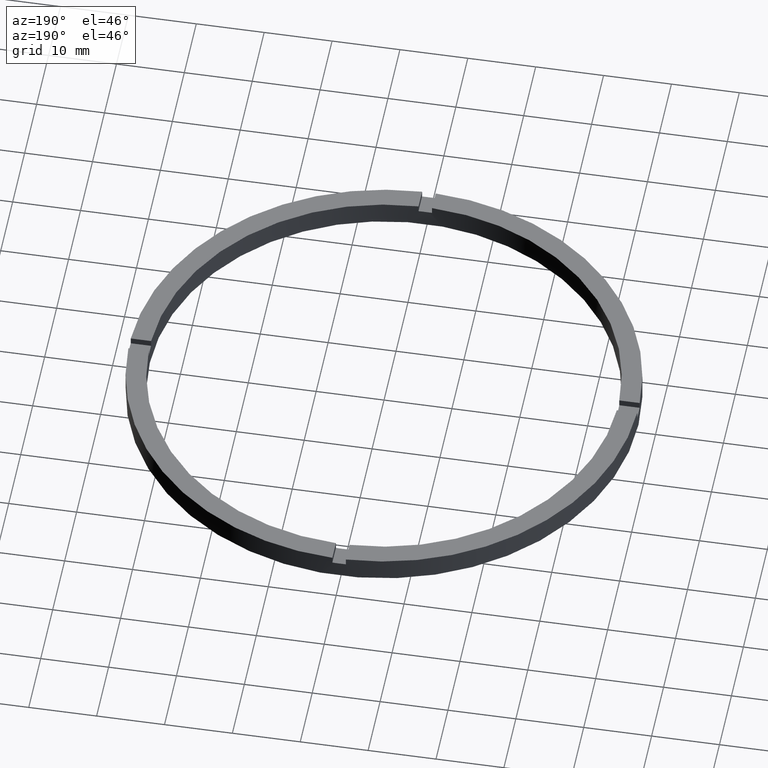
[diagram: clean part render]
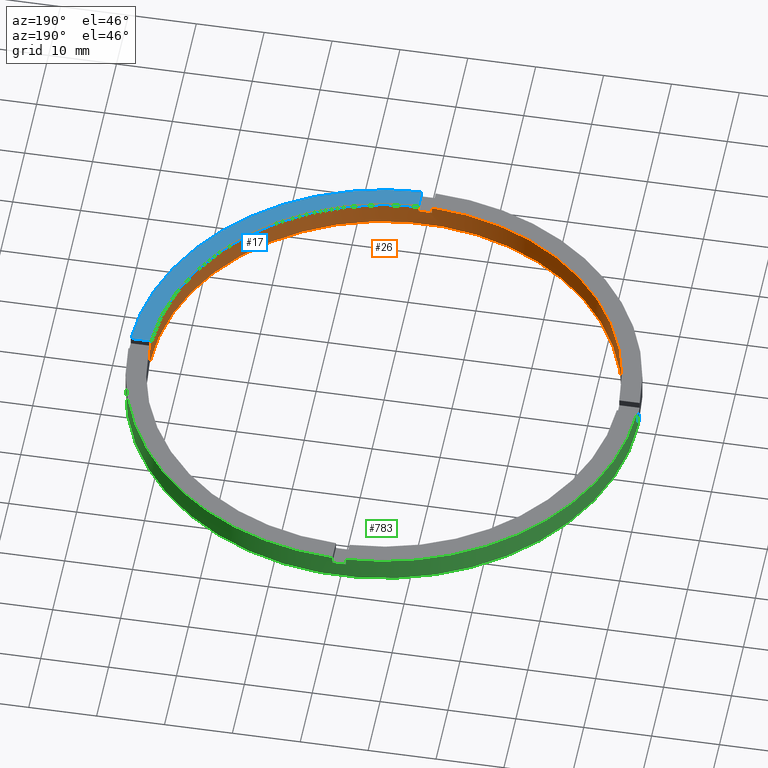
[diagram: same view with three faces highlighted in distinct colors, each labeled with its STEP entity id]
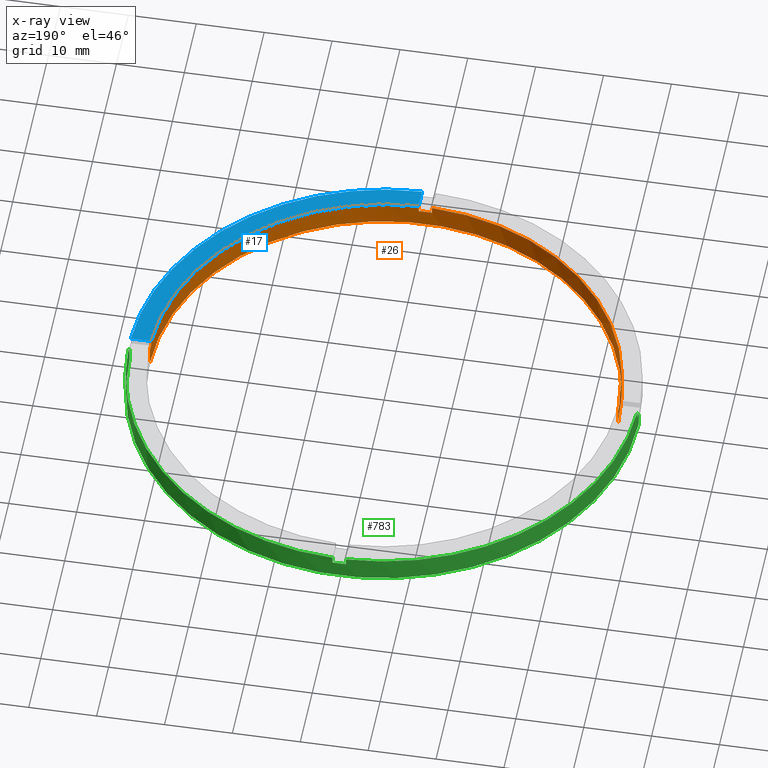
[diagram: x-ray of the same camera — body ghosted, the three highlighted faces saturated]
A machine part, auxiliary view with three faces highlighted in distinct colors.
The next image is the same camera in x-ray (body ghosted, the three faces saturated) — at least one of them is partly hidden behind the body in this view.
Their STEP definitions:

[orange] entity #26 — the highlighted cylindrical surface (partial cylindrical patch) has radius 34.5 mm, axis along (-0, -0, -1).
#1 = EDGE_CURVE ( 'NONE', #712, #366, #627, .T. ) ;
#12 = CARTESIAN_POINT ( 'NONE',  ( 0.9999999999998397948, -34.48550420104076153, 3.500000000000000000 ) ) ;
#26 = ADVANCED_FACE ( 'NONE', ( #644 ), #421, .F. ) ;
#28 = LINE ( 'NONE', #554, #290 ) ;
#41 = AXIS2_PLACEMENT_3D ( 'NONE', #575, #181, #568 ) ;
#42 = DIRECTION ( 'NONE',  ( 1.000000000000000000, 0.000000000000000000, 0.000000000000000000 ) ) ;
#43 = CARTESIAN_POINT ( 'NONE',  ( -34.48550420104075442, -1.000000000000026867, 3.500000000000000000 ) ) ;
#46 = CARTESIAN_POINT ( 'NONE',  ( -1.000000000000160316, -34.48550420104075442, 3.500000000000000000 ) ) ;
#50 = CIRCLE ( 'NONE', #744, 34.49999999999999289 ) ;
#60 = CIRCLE ( 'NONE', #268, 34.49999999999999289 ) ;
#61 = VECTOR ( 'NONE', #683, 1000.000000000000000 ) ;
#68 = LINE ( 'NONE', #154, #61 ) ;
#74 = CARTESIAN_POINT ( 'NONE',  ( 0.9999999999998397948, -34.48550420104076153, 3.500000000000000000 ) ) ;
#83 = CARTESIAN_POINT ( 'NONE',  ( 0.000000000000000000, 0.000000000000000000, 0.000000000000000000 ) ) ;
#97 = ORIENTED_EDGE ( 'NONE', *, *, #292, .T. ) ;
#98 = ORIENTED_EDGE ( 'NONE', *, *, #1, .F. ) ;
#100 = ORIENTED_EDGE ( 'NONE', *, *, #477, .F. ) ;
#123 = EDGE_LOOP ( 'NONE', ( #718, #203, #594, #673, #725, #98, #97, #649, #745, #378, #198, #100 ) ) ;
#127 = CARTESIAN_POINT ( 'NONE',  ( 34.48550420104075442, -1.000000000000157652, 3.500000000000000000 ) ) ;
#134 = DIRECTION ( 'NONE',  ( 1.000000000000000000, 0.000000000000000000, 0.000000000000000000 ) ) ;
#141 = DIRECTION ( 'NONE',  ( -0.000000000000000000, 0.000000000000000000, 1.000000000000000000 ) ) ;
#154 = CARTESIAN_POINT ( 'NONE',  ( 34.49999999999999289, 4.225031457058367344E-15, 3.500000000000000000 ) ) ;
#177 = CIRCLE ( 'NONE', #364, 34.49999999999999289 ) ;
#181 = DIRECTION ( 'NONE',  ( 0.000000000000000000, 0.000000000000000000, 1.000000000000000000 ) ) ;
#182 = AXIS2_PLACEMENT_3D ( 'NONE', #207, #256, #216 ) ;
#186 = DIRECTION ( 'NONE',  ( 0.000000000000000000, 0.000000000000000000, 1.000000000000000000 ) ) ;
#190 = EDGE_CURVE ( 'NONE', #775, #486, #670, .T. ) ;
#197 = DIRECTION ( 'NONE',  ( -0.000000000000000000, -0.000000000000000000, -1.000000000000000000 ) ) ;
#198 = ORIENTED_EDGE ( 'NONE', *, *, #447, .T. ) ;
#199 = CARTESIAN_POINT ( 'NONE',  ( 0.000000000000000000, 0.000000000000000000, 3.500000000000000000 ) ) ;
#203 = ORIENTED_EDGE ( 'NONE', *, *, #666, .T. ) ;
#207 = CARTESIAN_POINT ( 'NONE',  ( 0.000000000000000000, 0.000000000000000000, 3.500000000000000000 ) ) ;
#216 = DIRECTION ( 'NONE',  ( -1.000000000000000000, 0.000000000000000000, 0.000000000000000000 ) ) ;
#231 = VERTEX_POINT ( 'NONE', #586 ) ;
#254 = DIRECTION ( 'NONE',  ( 0.000000000000000000, 0.000000000000000000, 1.000000000000000000 ) ) ;
#256 = DIRECTION ( 'NONE',  ( -0.000000000000000000, -0.000000000000000000, -1.000000000000000000 ) ) ;
#263 = EDGE_CURVE ( 'NONE', #754, #687, #177, .T. ) ;
#268 = AXIS2_PLACEMENT_3D ( 'NONE', #83, #515, #42 ) ;
#282 = LINE ( 'NONE', #127, #295 ) ;
#288 = CIRCLE ( 'NONE', #734, 34.49999999999999289 ) ;
#290 = VECTOR ( 'NONE', #749, 1000.000000000000000 ) ;
#292 = EDGE_CURVE ( 'NONE', #712, #486, #438, .T. ) ;
#295 = VECTOR ( 'NONE', #740, 1000.000000000000000 ) ;
#329 = CARTESIAN_POINT ( 'NONE',  ( -34.49999999999999289, 0.000000000000000000, 0.000000000000000000 ) ) ;
#334 = CARTESIAN_POINT ( 'NONE',  ( -34.48550420104075442, -1.000000000000026867, 3.500000000000000000 ) ) ;
#361 = VERTEX_POINT ( 'NONE', #709 ) ;
#364 = AXIS2_PLACEMENT_3D ( 'NONE', #493, #186, #582 ) ;
#366 = VERTEX_POINT ( 'NONE', #516 ) ;
#372 = DIRECTION ( 'NONE',  ( 1.000000000000000000, 0.000000000000000000, 0.000000000000000000 ) ) ;
#378 = ORIENTED_EDGE ( 'NONE', *, *, #521, .F. ) ;
#392 = VERTEX_POINT ( 'NONE', #74 ) ;
#393 = VECTOR ( 'NONE', #197, 1000.000000000000000 ) ;
#405 = EDGE_CURVE ( 'NONE', #775, #741, #535, .T. ) ;
#412 = CARTESIAN_POINT ( 'NONE',  ( 0.9999999999998397948, -34.48550420104076153, 2.500000000000000000 ) ) ;
#421 = CYLINDRICAL_SURFACE ( 'NONE', #182, 34.49999999999999289 ) ;
#438 = CIRCLE ( 'NONE', #41, 34.49999999999999289 ) ;
#439 = VECTOR ( 'NONE', #777, 1000.000000000000000 ) ;
#447 = EDGE_CURVE ( 'NONE', #392, #632, #288, .T. ) ;
#477 = EDGE_CURVE ( 'NONE', #754, #632, #282, .T. ) ;
#486 = VERTEX_POINT ( 'NONE', #753 ) ;
#493 = CARTESIAN_POINT ( 'NONE',  ( 0.000000000000000000, 0.000000000000000000, 2.500000000000000000 ) ) ;
#501 = CARTESIAN_POINT ( 'NONE',  ( 34.49999999999999289, 4.225031457058367344E-15, 2.500000000000000000 ) ) ;
#507 = EDGE_CURVE ( 'NONE', #361, #748, #28, .T. ) ;
#512 = CARTESIAN_POINT ( 'NONE',  ( 34.48550420104075442, -1.000000000000157652, 2.500000000000000000 ) ) ;
#515 = DIRECTION ( 'NONE',  ( 0.000000000000000000, 0.000000000000000000, 1.000000000000000000 ) ) ;
#516 = CARTESIAN_POINT ( 'NONE',  ( -34.48550420104075442, -1.000000000000026867, 2.500000000000000000 ) ) ;
#521 = EDGE_CURVE ( 'NONE', #392, #741, #552, .T. ) ;
#522 = DIRECTION ( 'NONE',  ( 0.000000000000000000, 0.000000000000000000, 1.000000000000000000 ) ) ;
#534 = VECTOR ( 'NONE', #766, 1000.000000000000000 ) ;
#535 = CIRCLE ( 'NONE', #676, 34.49999999999999289 ) ;
#542 = CARTESIAN_POINT ( 'NONE',  ( 34.48550420104075442, -1.000000000000157652, 3.500000000000000000 ) ) ;
#552 = LINE ( 'NONE', #12, #534 ) ;
#554 = CARTESIAN_POINT ( 'NONE',  ( -34.49999999999999289, 0.000000000000000000, 3.500000000000000000 ) ) ;
#568 = DIRECTION ( 'NONE',  ( 1.000000000000000000, 0.000000000000000000, 0.000000000000000000 ) ) ;
#575 = CARTESIAN_POINT ( 'NONE',  ( 0.000000000000000000, 0.000000000000000000, 3.500000000000000000 ) ) ;
#582 = DIRECTION ( 'NONE',  ( 1.000000000000000000, 0.000000000000000000, 0.000000000000000000 ) ) ;
#586 = CARTESIAN_POINT ( 'NONE',  ( 34.49999999999999289, 4.225031457058367344E-15, 0.000000000000000000 ) ) ;
#594 = ORIENTED_EDGE ( 'NONE', *, *, #771, .F. ) ;
#627 = LINE ( 'NONE', #43, #393 ) ;
#632 = VERTEX_POINT ( 'NONE', #542 ) ;
#634 = CARTESIAN_POINT ( 'NONE',  ( -1.000000000000160316, -34.48550420104075442, 2.500000000000000000 ) ) ;
#644 = FACE_OUTER_BOUND ( 'NONE', #123, .T. ) ;
#649 = ORIENTED_EDGE ( 'NONE', *, *, #190, .F. ) ;
#666 = EDGE_CURVE ( 'NONE', #687, #231, #68, .T. ) ;
#670 = LINE ( 'NONE', #46, #439 ) ;
#673 = ORIENTED_EDGE ( 'NONE', *, *, #507, .F. ) ;
#676 = AXIS2_PLACEMENT_3D ( 'NONE', #705, #141, #134 ) ;
#683 = DIRECTION ( 'NONE',  ( -0.000000000000000000, -0.000000000000000000, -1.000000000000000000 ) ) ;
#687 = VERTEX_POINT ( 'NONE', #501 ) ;
#705 = CARTESIAN_POINT ( 'NONE',  ( 0.000000000000000000, 0.000000000000000000, 2.500000000000000000 ) ) ;
#708 = DIRECTION ( 'NONE',  ( 1.000000000000000000, 0.000000000000000000, 0.000000000000000000 ) ) ;
#709 = CARTESIAN_POINT ( 'NONE',  ( -34.49999999999999289, 0.000000000000000000, 2.500000000000000000 ) ) ;
#710 = CARTESIAN_POINT ( 'NONE',  ( 0.000000000000000000, 0.000000000000000000, 2.500000000000000000 ) ) ;
#712 = VERTEX_POINT ( 'NONE', #334 ) ;
#718 = ORIENTED_EDGE ( 'NONE', *, *, #263, .T. ) ;
#725 = ORIENTED_EDGE ( 'NONE', *, *, #778, .T. ) ;
#734 = AXIS2_PLACEMENT_3D ( 'NONE', #199, #254, #372 ) ;
#740 = DIRECTION ( 'NONE',  ( 0.000000000000000000, 0.000000000000000000, 1.000000000000000000 ) ) ;
#741 = VERTEX_POINT ( 'NONE', #412 ) ;
#744 = AXIS2_PLACEMENT_3D ( 'NONE', #710, #522, #708 ) ;
#745 = ORIENTED_EDGE ( 'NONE', *, *, #405, .T. ) ;
#748 = VERTEX_POINT ( 'NONE', #329 ) ;
#749 = DIRECTION ( 'NONE',  ( -0.000000000000000000, -0.000000000000000000, -1.000000000000000000 ) ) ;
#753 = CARTESIAN_POINT ( 'NONE',  ( -1.000000000000160316, -34.48550420104075442, 3.500000000000000000 ) ) ;
#754 = VERTEX_POINT ( 'NONE', #512 ) ;
#766 = DIRECTION ( 'NONE',  ( -0.000000000000000000, -0.000000000000000000, -1.000000000000000000 ) ) ;
#771 = EDGE_CURVE ( 'NONE', #748, #231, #60, .T. ) ;
#775 = VERTEX_POINT ( 'NONE', #634 ) ;
#777 = DIRECTION ( 'NONE',  ( 0.000000000000000000, 0.000000000000000000, 1.000000000000000000 ) ) ;
#778 = EDGE_CURVE ( 'NONE', #361, #366, #50, .T. ) ;

[blue] entity #17 — the highlighted planar face has unit normal (0, 0, 1).
#17 = ADVANCED_FACE ( 'NONE', ( #382 ), #609, .T. ) ;
#30 = AXIS2_PLACEMENT_3D ( 'NONE', #58, #139, #757 ) ;
#40 = EDGE_CURVE ( 'NONE', #755, #392, #679, .T. ) ;
#44 = DIRECTION ( 'NONE',  ( 0.000000000000000000, 0.000000000000000000, 1.000000000000000000 ) ) ;
#58 = CARTESIAN_POINT ( 'NONE',  ( 0.000000000000000000, 0.000000000000000000, 3.500000000000000000 ) ) ;
#66 = LINE ( 'NONE', #596, #335 ) ;
#74 = CARTESIAN_POINT ( 'NONE',  ( 0.9999999999998397948, -34.48550420104076153, 3.500000000000000000 ) ) ;
#94 = CARTESIAN_POINT ( 'NONE',  ( 0.000000000000000000, 0.000000000000000000, 3.500000000000000000 ) ) ;
#130 = DIRECTION ( 'NONE',  ( 1.000000000000000000, 6.505213034913025371E-17, 0.000000000000000000 ) ) ;
#132 = ORIENTED_EDGE ( 'NONE', *, *, #640, .F. ) ;
#139 = DIRECTION ( 'NONE',  ( 0.000000000000000000, 0.000000000000000000, 1.000000000000000000 ) ) ;
#180 = CARTESIAN_POINT ( 'NONE',  ( 0.9999999999998400169, -37.48666429545313150, 3.500000000000000000 ) ) ;
#192 = AXIS2_PLACEMENT_3D ( 'NONE', #94, #44, #492 ) ;
#199 = CARTESIAN_POINT ( 'NONE',  ( 0.000000000000000000, 0.000000000000000000, 3.500000000000000000 ) ) ;
#254 = DIRECTION ( 'NONE',  ( 0.000000000000000000, 0.000000000000000000, 1.000000000000000000 ) ) ;
#281 = CIRCLE ( 'NONE', #192, 37.50000000000000711 ) ;
#288 = CIRCLE ( 'NONE', #734, 34.49999999999999289 ) ;
#301 = EDGE_CURVE ( 'NONE', #755, #456, #281, .T. ) ;
#335 = VECTOR ( 'NONE', #130, 1000.000000000000000 ) ;
#372 = DIRECTION ( 'NONE',  ( 1.000000000000000000, 0.000000000000000000, 0.000000000000000000 ) ) ;
#382 = FACE_OUTER_BOUND ( 'NONE', #489, .T. ) ;
#392 = VERTEX_POINT ( 'NONE', #74 ) ;
#447 = EDGE_CURVE ( 'NONE', #392, #632, #288, .T. ) ;
#456 = VERTEX_POINT ( 'NONE', #767 ) ;
#457 = ORIENTED_EDGE ( 'NONE', *, *, #447, .F. ) ;
#489 = EDGE_LOOP ( 'NONE', ( #132, #457, #636, #717 ) ) ;
#492 = DIRECTION ( 'NONE',  ( 1.000000000000000000, 0.000000000000000000, 0.000000000000000000 ) ) ;
#542 = CARTESIAN_POINT ( 'NONE',  ( 34.48550420104075442, -1.000000000000157652, 3.500000000000000000 ) ) ;
#545 = CARTESIAN_POINT ( 'NONE',  ( 0.9999999999998389066, -27.50000000000018474, 3.500000000000000000 ) ) ;
#596 = CARTESIAN_POINT ( 'NONE',  ( 27.49999999999999645, -1.000000000000158096, 3.500000000000000000 ) ) ;
#609 = PLANE ( 'NONE',  #30 ) ;
#632 = VERTEX_POINT ( 'NONE', #542 ) ;
#636 = ORIENTED_EDGE ( 'NONE', *, *, #40, .F. ) ;
#640 = EDGE_CURVE ( 'NONE', #632, #456, #66, .T. ) ;
#679 = LINE ( 'NONE', #545, #682 ) ;
#682 = VECTOR ( 'NONE', #696, 1000.000000000000000 ) ;
#696 = DIRECTION ( 'NONE',  ( -1.301042606982605074E-16, 1.000000000000000000, -0.000000000000000000 ) ) ;
#717 = ORIENTED_EDGE ( 'NONE', *, *, #301, .T. ) ;
#734 = AXIS2_PLACEMENT_3D ( 'NONE', #199, #254, #372 ) ;
#755 = VERTEX_POINT ( 'NONE', #180 ) ;
#757 = DIRECTION ( 'NONE',  ( 1.000000000000000000, 0.000000000000000000, -0.000000000000000000 ) ) ;
#767 = CARTESIAN_POINT ( 'NONE',  ( 37.48666429545312440, -1.000000000000157430, 3.500000000000000000 ) ) ;

[green] entity #783 — the highlighted cylindrical surface (partial cylindrical patch) has radius 37.5 mm, axis along (-0, -0, -1).
#6 = EDGE_CURVE ( 'NONE', #391, #677, #380, .T. ) ;
#8 = DIRECTION ( 'NONE',  ( 1.000000000000000000, 0.000000000000000000, 0.000000000000000000 ) ) ;
#9 = CARTESIAN_POINT ( 'NONE',  ( 0.9999999999999746869, 37.48666429545313150, 2.500000000000000000 ) ) ;
#15 = VECTOR ( 'NONE', #176, 1000.000000000000000 ) ;
#19 = LINE ( 'NONE', #103, #15 ) ;
#29 = CARTESIAN_POINT ( 'NONE',  ( 37.48666429545313150, 0.9999999999998425704, 3.500000000000000000 ) ) ;
#31 = VECTOR ( 'NONE', #62, 1000.000000000000000 ) ;
#48 = CARTESIAN_POINT ( 'NONE',  ( -37.50000000000000711, 0.000000000000000000, 0.000000000000000000 ) ) ;
#51 = CARTESIAN_POINT ( 'NONE',  ( 0.000000000000000000, 0.000000000000000000, 2.500000000000000000 ) ) ;
#55 = CIRCLE ( 'NONE', #128, 37.50000000000000711 ) ;
#62 = DIRECTION ( 'NONE',  ( -0.000000000000000000, -0.000000000000000000, -1.000000000000000000 ) ) ;
#77 = CARTESIAN_POINT ( 'NONE',  ( 0.000000000000000000, 0.000000000000000000, 2.500000000000000000 ) ) ;
#81 = EDGE_CURVE ( 'NONE', #475, #684, #156, .T. ) ;
#99 = ORIENTED_EDGE ( 'NONE', *, *, #765, .F. ) ;
#103 = CARTESIAN_POINT ( 'NONE',  ( 0.9999999999999746869, 37.48666429545313150, 3.500000000000000000 ) ) ;
#106 = VERTEX_POINT ( 'NONE', #452 ) ;
#115 = ORIENTED_EDGE ( 'NONE', *, *, #563, .T. ) ;
#119 = EDGE_CURVE ( 'NONE', #475, #652, #158, .T. ) ;
#128 = AXIS2_PLACEMENT_3D ( 'NONE', #422, #175, #408 ) ;
#136 = ORIENTED_EDGE ( 'NONE', *, *, #303, .T. ) ;
#149 = ORIENTED_EDGE ( 'NONE', *, *, #6, .T. ) ;
#156 = CIRCLE ( 'NONE', #782, 37.50000000000000711 ) ;
#158 = LINE ( 'NONE', #704, #429 ) ;
#169 = CARTESIAN_POINT ( 'NONE',  ( 0.000000000000000000, 0.000000000000000000, 3.500000000000000000 ) ) ;
#173 = CARTESIAN_POINT ( 'NONE',  ( -37.50000000000000711, 0.000000000000000000, 3.500000000000000000 ) ) ;
#175 = DIRECTION ( 'NONE',  ( 0.000000000000000000, -0.000000000000000000, 1.000000000000000000 ) ) ;
#176 = DIRECTION ( 'NONE',  ( 0.000000000000000000, 0.000000000000000000, 1.000000000000000000 ) ) ;
#210 = CARTESIAN_POINT ( 'NONE',  ( -37.48666429545313150, 0.9999999999999724665, 2.500000000000000000 ) ) ;
#234 = VERTEX_POINT ( 'NONE', #9 ) ;
#240 = DIRECTION ( 'NONE',  ( 0.000000000000000000, 0.000000000000000000, 1.000000000000000000 ) ) ;
#279 = DIRECTION ( 'NONE',  ( -0.000000000000000000, -0.000000000000000000, -1.000000000000000000 ) ) ;
#280 = EDGE_CURVE ( 'NONE', #391, #652, #700, .T. ) ;
#285 = VECTOR ( 'NONE', #590, 1000.000000000000000 ) ;
#294 = CIRCLE ( 'NONE', #509, 37.50000000000000711 ) ;
#297 = CIRCLE ( 'NONE', #747, 37.50000000000000711 ) ;
#303 = EDGE_CURVE ( 'NONE', #409, #417, #294, .T. ) ;
#311 = DIRECTION ( 'NONE',  ( 0.000000000000000000, 0.000000000000000000, 1.000000000000000000 ) ) ;
#315 = CARTESIAN_POINT ( 'NONE',  ( 37.48666429545313150, 0.9999999999998425704, 3.500000000000000000 ) ) ;
#324 = FACE_OUTER_BOUND ( 'NONE', #396, .T. ) ;
#332 = DIRECTION ( 'NONE',  ( 0.000000000000000000, 0.000000000000000000, 1.000000000000000000 ) ) ;
#341 = LINE ( 'NONE', #173, #573 ) ;
#356 = CARTESIAN_POINT ( 'NONE',  ( 37.48666429545313150, 0.9999999999998425704, 2.500000000000000000 ) ) ;
#367 = DIRECTION ( 'NONE',  ( 0.000000000000000000, 0.000000000000000000, 1.000000000000000000 ) ) ;
#373 = EDGE_CURVE ( 'NONE', #234, #403, #19, .T. ) ;
#377 = CARTESIAN_POINT ( 'NONE',  ( -1.000000000000025313, 37.48666429545312440, 3.500000000000000000 ) ) ;
#380 = LINE ( 'NONE', #377, #642 ) ;
#391 = VERTEX_POINT ( 'NONE', #398 ) ;
#395 = DIRECTION ( 'NONE',  ( 0.000000000000000000, 0.000000000000000000, 1.000000000000000000 ) ) ;
#396 = EDGE_LOOP ( 'NONE', ( #608, #115, #136, #620, #618, #661, #464, #149, #99, #414, #453, #397 ) ) ;
#397 = ORIENTED_EDGE ( 'NONE', *, *, #404, .T. ) ;
#398 = CARTESIAN_POINT ( 'NONE',  ( -1.000000000000025313, 37.48666429545312440, 3.500000000000000000 ) ) ;
#403 = VERTEX_POINT ( 'NONE', #599 ) ;
#404 = EDGE_CURVE ( 'NONE', #462, #491, #531, .T. ) ;
#408 = DIRECTION ( 'NONE',  ( 1.000000000000000000, 0.000000000000000000, 0.000000000000000000 ) ) ;
#409 = VERTEX_POINT ( 'NONE', #611 ) ;
#414 = ORIENTED_EDGE ( 'NONE', *, *, #373, .T. ) ;
#417 = VERTEX_POINT ( 'NONE', #48 ) ;
#422 = CARTESIAN_POINT ( 'NONE',  ( 0.000000000000000000, 0.000000000000000000, 2.500000000000000000 ) ) ;
#425 = AXIS2_PLACEMENT_3D ( 'NONE', #169, #463, #706 ) ;
#429 = VECTOR ( 'NONE', #763, 1000.000000000000000 ) ;
#443 = CARTESIAN_POINT ( 'NONE',  ( -37.50000000000000711, 0.000000000000000000, 2.500000000000000000 ) ) ;
#448 = CARTESIAN_POINT ( 'NONE',  ( -37.48666429545313150, 0.9999999999999724665, 3.500000000000000000 ) ) ;
#451 = CARTESIAN_POINT ( 'NONE',  ( 37.50000000000000711, 4.592425496802575156E-15, 3.500000000000000000 ) ) ;
#452 = CARTESIAN_POINT ( 'NONE',  ( 37.50000000000000711, 4.592425496802575156E-15, 2.500000000000000000 ) ) ;
#453 = ORIENTED_EDGE ( 'NONE', *, *, #478, .F. ) ;
#462 = VERTEX_POINT ( 'NONE', #29 ) ;
#463 = DIRECTION ( 'NONE',  ( -0.000000000000000000, -0.000000000000000000, -1.000000000000000000 ) ) ;
#464 = ORIENTED_EDGE ( 'NONE', *, *, #280, .F. ) ;
#475 = VERTEX_POINT ( 'NONE', #210 ) ;
#478 = EDGE_CURVE ( 'NONE', #462, #403, #527, .T. ) ;
#483 = DIRECTION ( 'NONE',  ( 1.000000000000000000, 0.000000000000000000, 0.000000000000000000 ) ) ;
#484 = CARTESIAN_POINT ( 'NONE',  ( 0.000000000000000000, 0.000000000000000000, 3.500000000000000000 ) ) ;
#491 = VERTEX_POINT ( 'NONE', #356 ) ;
#502 = DIRECTION ( 'NONE',  ( -0.000000000000000000, -0.000000000000000000, -1.000000000000000000 ) ) ;
#509 = AXIS2_PLACEMENT_3D ( 'NONE', #781, #332, #655 ) ;
#511 = CARTESIAN_POINT ( 'NONE',  ( -1.000000000000025313, 37.48666429545312440, 2.500000000000000000 ) ) ;
#518 = CARTESIAN_POINT ( 'NONE',  ( 0.000000000000000000, 0.000000000000000000, 3.500000000000000000 ) ) ;
#527 = CIRCLE ( 'NONE', #610, 37.50000000000000711 ) ;
#531 = LINE ( 'NONE', #315, #285 ) ;
#541 = LINE ( 'NONE', #451, #31 ) ;
#555 = DIRECTION ( 'NONE',  ( 1.000000000000000000, 0.000000000000000000, 0.000000000000000000 ) ) ;
#556 = EDGE_CURVE ( 'NONE', #106, #491, #297, .T. ) ;
#563 = EDGE_CURVE ( 'NONE', #106, #409, #541, .T. ) ;
#573 = VECTOR ( 'NONE', #279, 1000.000000000000000 ) ;
#589 = CYLINDRICAL_SURFACE ( 'NONE', #425, 37.50000000000000711 ) ;
#590 = DIRECTION ( 'NONE',  ( -0.000000000000000000, -0.000000000000000000, -1.000000000000000000 ) ) ;
#599 = CARTESIAN_POINT ( 'NONE',  ( 0.9999999999999746869, 37.48666429545313150, 3.500000000000000000 ) ) ;
#600 = DIRECTION ( 'NONE',  ( 1.000000000000000000, 0.000000000000000000, 0.000000000000000000 ) ) ;
#608 = ORIENTED_EDGE ( 'NONE', *, *, #556, .F. ) ;
#610 = AXIS2_PLACEMENT_3D ( 'NONE', #484, #311, #600 ) ;
#611 = CARTESIAN_POINT ( 'NONE',  ( 37.50000000000000711, 4.592425496802575156E-15, 0.000000000000000000 ) ) ;
#618 = ORIENTED_EDGE ( 'NONE', *, *, #81, .F. ) ;
#620 = ORIENTED_EDGE ( 'NONE', *, *, #735, .F. ) ;
#642 = VECTOR ( 'NONE', #502, 1000.000000000000000 ) ;
#652 = VERTEX_POINT ( 'NONE', #448 ) ;
#655 = DIRECTION ( 'NONE',  ( 1.000000000000000000, 0.000000000000000000, 0.000000000000000000 ) ) ;
#661 = ORIENTED_EDGE ( 'NONE', *, *, #119, .T. ) ;
#677 = VERTEX_POINT ( 'NONE', #511 ) ;
#684 = VERTEX_POINT ( 'NONE', #443 ) ;
#700 = CIRCLE ( 'NONE', #703, 37.50000000000000711 ) ;
#703 = AXIS2_PLACEMENT_3D ( 'NONE', #518, #240, #483 ) ;
#704 = CARTESIAN_POINT ( 'NONE',  ( -37.48666429545313150, 0.9999999999999724665, 3.500000000000000000 ) ) ;
#706 = DIRECTION ( 'NONE',  ( -1.000000000000000000, 0.000000000000000000, 0.000000000000000000 ) ) ;
#735 = EDGE_CURVE ( 'NONE', #684, #417, #341, .T. ) ;
#747 = AXIS2_PLACEMENT_3D ( 'NONE', #51, #367, #8 ) ;
#763 = DIRECTION ( 'NONE',  ( 0.000000000000000000, 0.000000000000000000, 1.000000000000000000 ) ) ;
#765 = EDGE_CURVE ( 'NONE', #234, #677, #55, .T. ) ;
#781 = CARTESIAN_POINT ( 'NONE',  ( 0.000000000000000000, 0.000000000000000000, 0.000000000000000000 ) ) ;
#782 = AXIS2_PLACEMENT_3D ( 'NONE', #77, #395, #555 ) ;
#783 = ADVANCED_FACE ( 'NONE', ( #324 ), #589, .T. ) ;